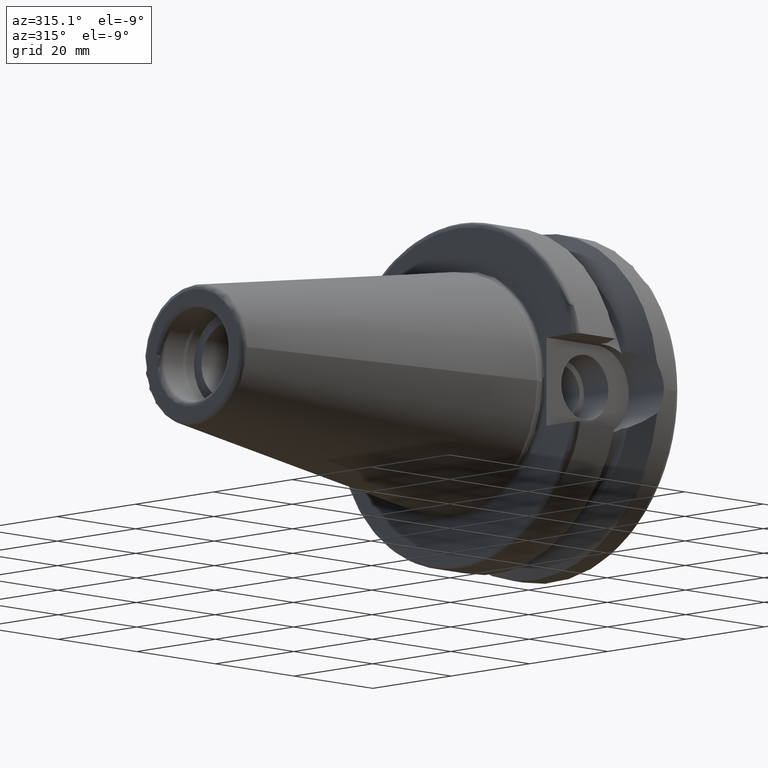
[diagram: clean part render]
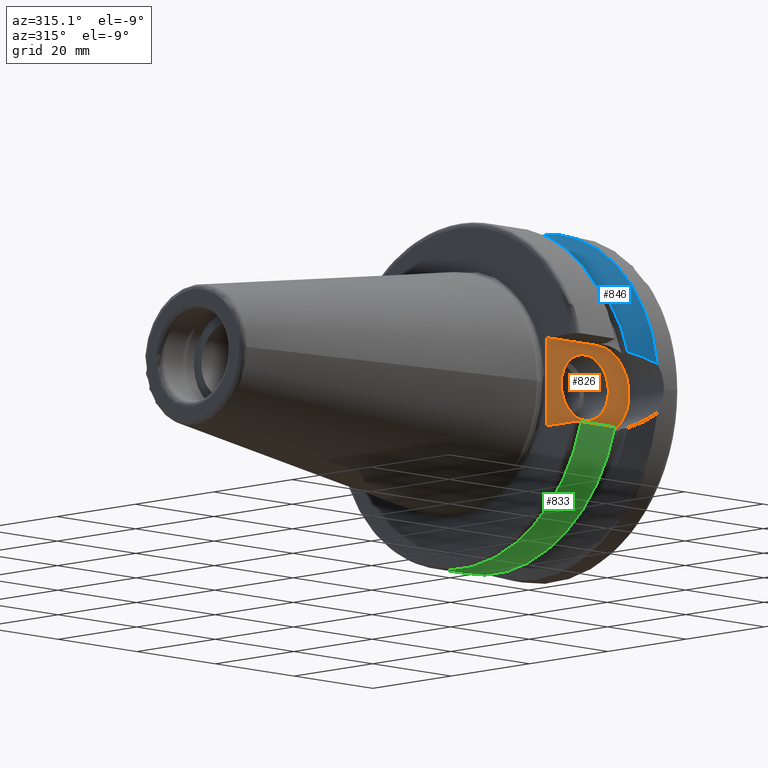
[diagram: same view with three faces highlighted in distinct colors, each labeled with its STEP entity id]
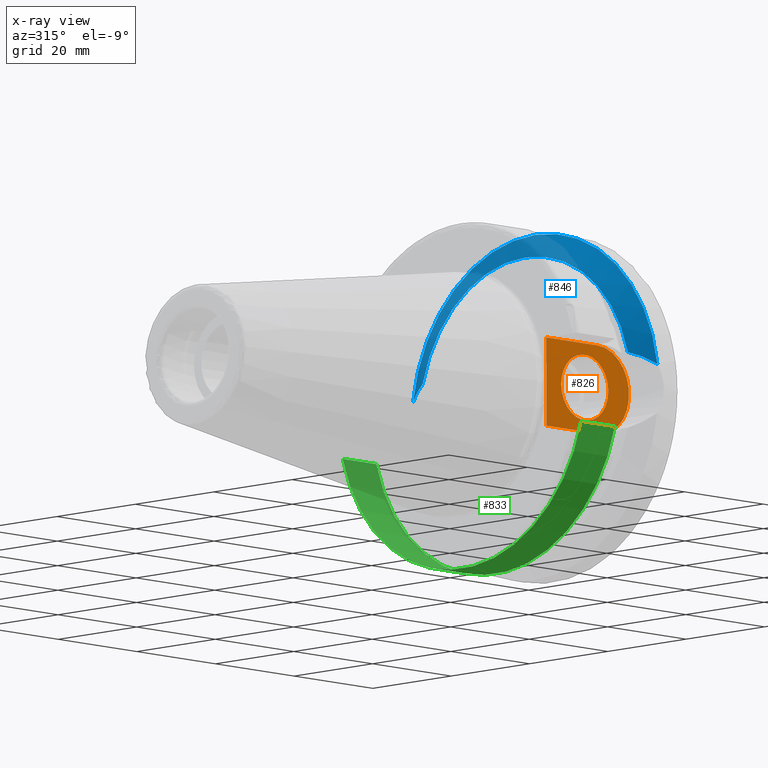
[diagram: x-ray of the same camera — body ghosted, the three highlighted faces saturated]
A machine part, auxiliary view with three faces highlighted in distinct colors.
The next image is the same camera in x-ray (body ghosted, the three faces saturated) — at least one of them is partly hidden behind the body in this view.
Their STEP definitions:

[orange] entity #826 — the highlighted planar face has unit normal (0, 1, 0).
#57=FACE_BOUND('',#151,.T.);
#68=PLANE('',#922);
#96=FACE_OUTER_BOUND('',#150,.T.);
#150=EDGE_LOOP('',(#628,#629,#630,#631));
#151=EDGE_LOOP('',(#632));
#199=LINE('',#1393,#243);
#205=LINE('',#1449,#249);
#209=LINE('',#1471,#253);
#243=VECTOR('',#1079,10.);
#249=VECTOR('',#1091,10.);
#253=VECTOR('',#1097,10.);
#280=CIRCLE('',#890,6.);
#298=CIRCLE('',#920,8.05);
#340=VERTEX_POINT('',#1272);
#363=VERTEX_POINT('',#1390);
#364=VERTEX_POINT('',#1392);
#366=VERTEX_POINT('',#1403);
#375=VERTEX_POINT('',#1448);
#423=EDGE_CURVE('',#340,#340,#280,.T.);
#455=EDGE_CURVE('',#363,#364,#199,.T.);
#458=EDGE_CURVE('',#364,#366,#298,.T.);
#468=EDGE_CURVE('',#366,#375,#205,.T.);
#474=EDGE_CURVE('',#375,#363,#209,.T.);
#628=ORIENTED_EDGE('',*,*,#468,.F.);
#629=ORIENTED_EDGE('',*,*,#458,.F.);
#630=ORIENTED_EDGE('',*,*,#455,.F.);
#631=ORIENTED_EDGE('',*,*,#474,.F.);
#632=ORIENTED_EDGE('',*,*,#423,.T.);
#826=ADVANCED_FACE('',(#96,#57),#68,.F.);
#890=AXIS2_PLACEMENT_3D('',#1273,#1011,#1012);
#920=AXIS2_PLACEMENT_3D('',#1404,#1083,#1084);
#922=AXIS2_PLACEMENT_3D('',#1470,#1095,#1096);
#1011=DIRECTION('center_axis',(0.,1.,0.));
#1012=DIRECTION('ref_axis',(1.,0.,8.57315076930623E-17));
#1079=DIRECTION('',(1.,0.,8.57315076930623E-17));
#1083=DIRECTION('center_axis',(0.,1.,0.));
#1084=DIRECTION('ref_axis',(0.,0.,1.));
#1091=DIRECTION('',(-1.,0.,-8.57315076930623E-17));
#1095=DIRECTION('center_axis',(0.,1.,0.));
#1096=DIRECTION('ref_axis',(0.,0.,1.));
#1097=DIRECTION('',(0.,0.,1.));
#1272=CARTESIAN_POINT('',(5.75,-22.6,-1.24917712564679E-15));
#1273=CARTESIAN_POINT('Origin',(11.75,-22.6,0.));
#1390=CARTESIAN_POINT('',(1.99999999999999,-22.6,8.05));
#1392=CARTESIAN_POINT('',(14.95,-22.6,8.05));
#1393=CARTESIAN_POINT('',(1.99999999999999,-22.6,8.05));
#1403=CARTESIAN_POINT('',(14.95,-22.6,-8.05));
#1404=CARTESIAN_POINT('Origin',(14.95,-22.6,0.));
#1448=CARTESIAN_POINT('',(1.99999999999999,-22.6,-8.05));
#1449=CARTESIAN_POINT('',(14.95,-22.6,-8.05));
#1470=CARTESIAN_POINT('Origin',(12.5,-22.6,0.));
#1471=CARTESIAN_POINT('',(1.99999999999999,-22.6,0.));

[blue] entity #846 — the highlighted conical surface has half-angle 60.125 deg.
#23=CONICAL_SURFACE('',#962,29.2970358274569,1.0493792127616);
#44=B_SPLINE_CURVE_WITH_KNOTS('',3,(#1438,#1439,#1440,#1441,#1442,#1443),
 .UNSPECIFIED.,.F.,.F.,(4,2,4),(1.46421027899559,1.54570476603972,2.04294020568399),
 .UNSPECIFIED.);
#52=B_SPLINE_CURVE_WITH_KNOTS('',3,(#1581,#1582,#1583,#1584,#1585,#1586),
 .UNSPECIFIED.,.F.,.F.,(4,2,4),(3.12975744792547,3.62699288756974,3.70848737461386),
 .UNSPECIFIED.);
#116=FACE_OUTER_BOUND('',#173,.T.);
#173=EDGE_LOOP('',(#738,#739,#740,#741));
#301=CIRCLE('',#926,31.5);
#318=CIRCLE('',#961,27.0940716549138);
#372=VERTEX_POINT('',#1430);
#373=VERTEX_POINT('',#1437);
#383=VERTEX_POINT('',#1479);
#401=VERTEX_POINT('',#1579);
#465=EDGE_CURVE('',#373,#372,#44,.T.);
#479=EDGE_CURVE('',#383,#372,#301,.T.);
#506=EDGE_CURVE('',#383,#401,#52,.T.);
#519=EDGE_CURVE('',#401,#373,#318,.T.);
#738=ORIENTED_EDGE('',*,*,#465,.T.);
#739=ORIENTED_EDGE('',*,*,#479,.F.);
#740=ORIENTED_EDGE('',*,*,#506,.T.);
#741=ORIENTED_EDGE('',*,*,#519,.T.);
#846=ADVANCED_FACE('',(#116),#23,.T.);
#926=AXIS2_PLACEMENT_3D('',#1490,#1105,#1106);
#961=AXIS2_PLACEMENT_3D('',#1611,#1190,#1191);
#962=AXIS2_PLACEMENT_3D('',#1612,#1192,#1193);
#1105=DIRECTION('center_axis',(1.,0.,0.));
#1106=DIRECTION('ref_axis',(0.,0.,-1.));
#1190=DIRECTION('center_axis',(1.,0.,0.));
#1191=DIRECTION('ref_axis',(0.,0.,-1.));
#1192=DIRECTION('center_axis',(1.,0.,0.));
#1193=DIRECTION('ref_axis',(0.,1.,0.));
#1430=CARTESIAN_POINT('',(21.6309636926618,-31.1782420264945,4.4907932637046));
#1437=CARTESIAN_POINT('',(19.1,-26.201311395455,6.89782574439221));
#1438=CARTESIAN_POINT('Ctrl Pts',(19.1,-26.201311395455,6.89782574439221));
#1439=CARTESIAN_POINT('Ctrl Pts',(19.2210929544554,-26.4384736933511,6.82497151762395));
#1440=CARTESIAN_POINT('Ctrl Pts',(19.3406963650697,-26.6728819297428,6.74867108656039));
#1441=CARTESIAN_POINT('Ctrl Pts',(20.1784155384866,-28.3157123387484,6.18231368976925));
#1442=CARTESIAN_POINT('Ctrl Pts',(20.9728756148303,-29.8797957262939,5.46983244373115));
#1443=CARTESIAN_POINT('Ctrl Pts',(21.6309636926618,-31.1782420264945,4.4907932637046));
#1479=CARTESIAN_POINT('',(21.6309636926618,31.1782420264945,4.4907932637046));
#1490=CARTESIAN_POINT('Origin',(21.6309636926618,0.,0.));
#1579=CARTESIAN_POINT('',(19.1,26.201311395455,6.89782574439221));
#1581=CARTESIAN_POINT('Ctrl Pts',(21.6309636926618,31.1782420264945,4.4907932637046));
#1582=CARTESIAN_POINT('Ctrl Pts',(20.9728756148303,29.8797957262939,5.46983244373114));
#1583=CARTESIAN_POINT('Ctrl Pts',(20.1784155384866,28.3157123387484,6.18231368976924));
#1584=CARTESIAN_POINT('Ctrl Pts',(19.3406963650697,26.6728819297428,6.74867108656039));
#1585=CARTESIAN_POINT('Ctrl Pts',(19.2210929544554,26.438473693351,6.82497151762395));
#1586=CARTESIAN_POINT('Ctrl Pts',(19.1,26.201311395455,6.89782574439221));
#1611=CARTESIAN_POINT('Origin',(19.1,0.,0.));
#1612=CARTESIAN_POINT('Origin',(20.3654818463309,0.,0.));

[green] entity #833 — the highlighted cylindrical surface (partial cylindrical patch) has radius 31.5 mm, axis along (1, 0, 0).
#103=FACE_OUTER_BOUND('',#158,.T.);
#158=EDGE_LOOP('',(#664,#665,#666,#667));
#207=LINE('',#1464,#251);
#214=LINE('',#1529,#258);
#251=VECTOR('',#1093,10.);
#258=VECTOR('',#1136,10.);
#307=CIRCLE('',#937,31.5000000000001);
#308=CIRCLE('',#939,31.5);
#377=VERTEX_POINT('',#1452);
#378=VERTEX_POINT('',#1463);
#389=VERTEX_POINT('',#1521);
#390=VERTEX_POINT('',#1527);
#471=EDGE_CURVE('',#378,#377,#207,.T.);
#490=EDGE_CURVE('',#378,#389,#307,.T.);
#492=EDGE_CURVE('',#377,#390,#308,.T.);
#493=EDGE_CURVE('',#390,#389,#214,.T.);
#664=ORIENTED_EDGE('',*,*,#471,.T.);
#665=ORIENTED_EDGE('',*,*,#492,.T.);
#666=ORIENTED_EDGE('',*,*,#493,.T.);
#667=ORIENTED_EDGE('',*,*,#490,.F.);
#802=CYLINDRICAL_SURFACE('',#938,31.5);
#833=ADVANCED_FACE('',(#103),#802,.T.);
#937=AXIS2_PLACEMENT_3D('',#1522,#1130,#1131);
#938=AXIS2_PLACEMENT_3D('',#1526,#1132,#1133);
#939=AXIS2_PLACEMENT_3D('',#1528,#1134,#1135);
#1093=DIRECTION('',(-1.,0.,0.));
#1130=DIRECTION('center_axis',(1.,0.,0.));
#1131=DIRECTION('ref_axis',(0.,0.,-1.));
#1132=DIRECTION('center_axis',(1.,0.,0.));
#1133=DIRECTION('ref_axis',(0.,1.,0.));
#1134=DIRECTION('center_axis',(1.,0.,0.));
#1135=DIRECTION('ref_axis',(0.,0.,-1.));
#1136=DIRECTION('',(1.,0.,0.));
#1452=CARTESIAN_POINT('',(2.99999999999999,-30.4540227227866,-8.05));
#1463=CARTESIAN_POINT('',(11.5690363073382,-30.4540227227866,-8.05));
#1464=CARTESIAN_POINT('',(7.28451815366907,-30.4540227227866,-8.05));
#1521=CARTESIAN_POINT('',(11.5690363073382,30.4540227227866,-8.05));
#1522=CARTESIAN_POINT('Origin',(11.5690363073382,0.,0.));
#1526=CARTESIAN_POINT('Origin',(7.28451815366907,0.,0.));
#1527=CARTESIAN_POINT('',(2.99999999999999,30.4540227227866,-8.05));
#1528=CARTESIAN_POINT('Origin',(2.99999999999999,0.,0.));
#1529=CARTESIAN_POINT('',(7.28451815366907,30.4540227227866,-8.05));